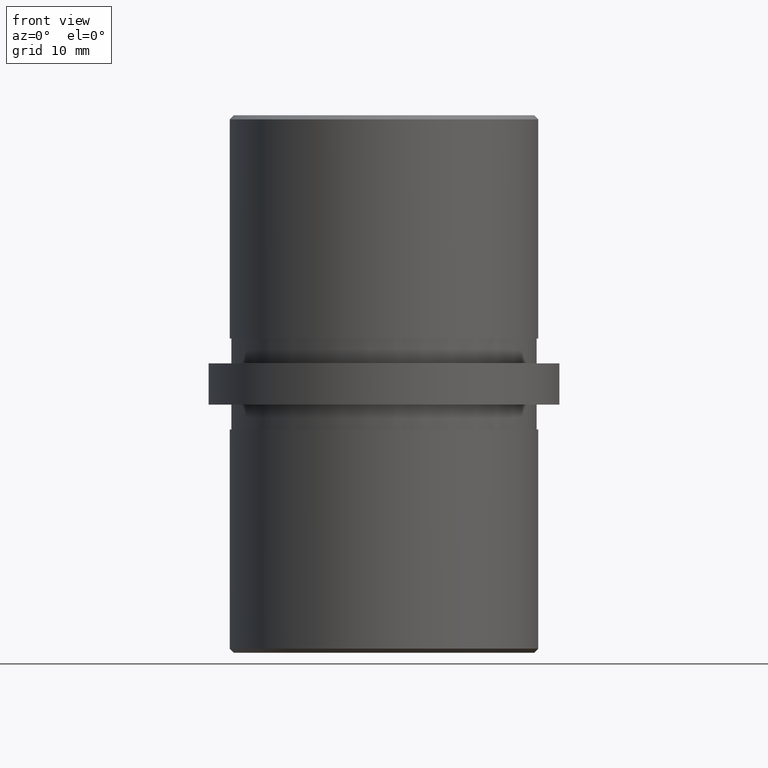
[diagram: clean part render]
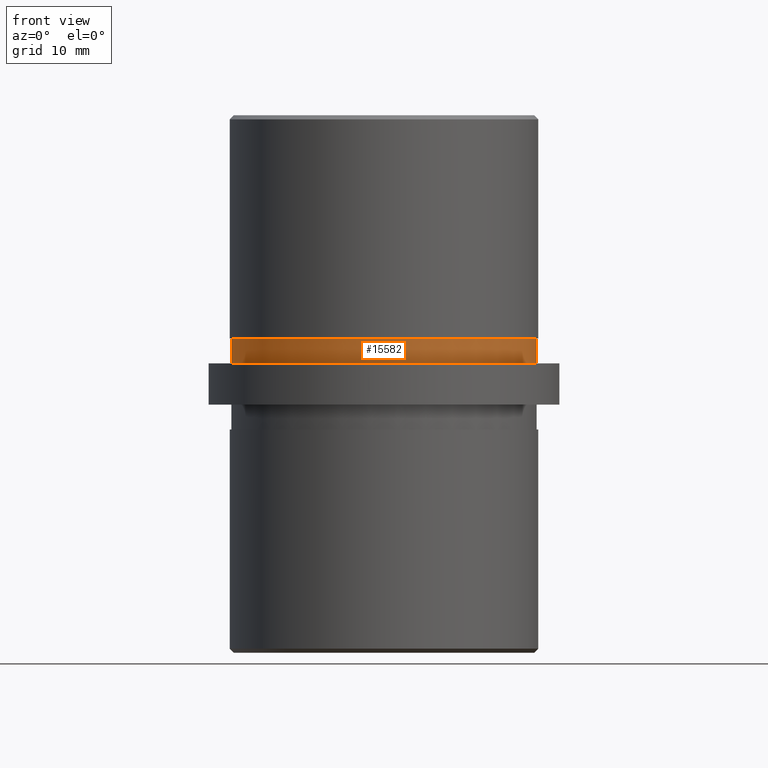
[diagram: same view with one face highlighted and labeled with its STEP entity id]
A machine part, front view. The second image highlights one B-rep face of the part: STEP entity #15582.
In plain terms, the highlighted cylindrical surface (partial cylindrical patch) has radius 18.45 mm, axis along (-0, -0, -1).
Its self-contained STEP definition (entity closure, byte-faithful):
#810 = VECTOR ( 'NONE', #11567, 1000.000000000000000 ) ;
#842 = EDGE_CURVE ( 'NONE', #20562, #14164, #14418, .T. ) ;
#1423 = CIRCLE ( 'NONE', #10140, 18.45000000000000300 ) ;
#1593 = AXIS2_PLACEMENT_3D ( 'NONE', #21100, #4175, #16044 ) ;
#1788 = AXIS2_PLACEMENT_3D ( 'NONE', #9281, #14547, #4463 ) ;
#4175 = DIRECTION ( 'NONE',  ( -0.0000000000000000000, -0.0000000000000000000, -1.000000000000000000 ) ) ;
#4463 = DIRECTION ( 'NONE',  ( 1.000000000000000000, 0.0000000000000000000, 0.0000000000000000000 ) ) ;
#5370 = CIRCLE ( 'NONE', #1788, 18.45000000000000300 ) ;
#7508 = CYLINDRICAL_SURFACE ( 'NONE', #1593, 18.45000000000000300 ) ;
#7784 = FACE_OUTER_BOUND ( 'NONE', #12672, .T. ) ;
#8277 = CARTESIAN_POINT ( 'NONE',  ( 18.45000000000000300, 2.259473344426867100E-015, 5.500000000000000000 ) ) ;
#9281 = CARTESIAN_POINT ( 'NONE',  ( 0.0000000000000000000, 0.0000000000000000000, 2.500000000000000000 ) ) ;
#10140 = AXIS2_PLACEMENT_3D ( 'NONE', #16446, #21906, #18383 ) ;
#10831 = ORIENTED_EDGE ( 'NONE', *, *, #842, .F. ) ;
#11567 = DIRECTION ( 'NONE',  ( -0.0000000000000000000, -0.0000000000000000000, -1.000000000000000000 ) ) ;
#12302 = VERTEX_POINT ( 'NONE', #20015 ) ;
#12672 = EDGE_LOOP ( 'NONE', ( #10831, #15357, #20921, #16193 ) ) ;
#12697 = CARTESIAN_POINT ( 'NONE',  ( 18.45000000000000300, 2.259473344426867100E-015, 5.500000000000000000 ) ) ;
#13881 = VECTOR ( 'NONE', #20002, 1000.000000000000000 ) ;
#14098 = CARTESIAN_POINT ( 'NONE',  ( 18.45000000000000300, 2.259473344426867100E-015, 2.500000000000000000 ) ) ;
#14164 = VERTEX_POINT ( 'NONE', #14098 ) ;
#14418 = LINE ( 'NONE', #8277, #13881 ) ;
#14454 = CARTESIAN_POINT ( 'NONE',  ( -18.45000000000000300, 0.0000000000000000000, 2.500000000000000000 ) ) ;
#14547 = DIRECTION ( 'NONE',  ( 0.0000000000000000000, 0.0000000000000000000, 1.000000000000000000 ) ) ;
#15353 = EDGE_CURVE ( 'NONE', #12302, #18003, #17748, .T. ) ;
#15357 = ORIENTED_EDGE ( 'NONE', *, *, #16754, .F. ) ;
#15582 = ADVANCED_FACE ( 'NONE', ( #7784 ), #7508, .T. ) ;
#16044 = DIRECTION ( 'NONE',  ( -1.000000000000000000, 0.0000000000000000000, 0.0000000000000000000 ) ) ;
#16193 = ORIENTED_EDGE ( 'NONE', *, *, #17870, .T. ) ;
#16446 = CARTESIAN_POINT ( 'NONE',  ( 0.0000000000000000000, 0.0000000000000000000, 5.500000000000000000 ) ) ;
#16754 = EDGE_CURVE ( 'NONE', #12302, #20562, #1423, .T. ) ;
#17748 = LINE ( 'NONE', #21912, #810 ) ;
#17870 = EDGE_CURVE ( 'NONE', #18003, #14164, #5370, .T. ) ;
#18003 = VERTEX_POINT ( 'NONE', #14454 ) ;
#18383 = DIRECTION ( 'NONE',  ( 1.000000000000000000, 0.0000000000000000000, 0.0000000000000000000 ) ) ;
#20002 = DIRECTION ( 'NONE',  ( -0.0000000000000000000, -0.0000000000000000000, -1.000000000000000000 ) ) ;
#20015 = CARTESIAN_POINT ( 'NONE',  ( -18.45000000000000300, 0.0000000000000000000, 5.500000000000000000 ) ) ;
#20562 = VERTEX_POINT ( 'NONE', #12697 ) ;
#20921 = ORIENTED_EDGE ( 'NONE', *, *, #15353, .T. ) ;
#21100 = CARTESIAN_POINT ( 'NONE',  ( 0.0000000000000000000, 0.0000000000000000000, 5.500000000000000000 ) ) ;
#21906 = DIRECTION ( 'NONE',  ( 0.0000000000000000000, 0.0000000000000000000, 1.000000000000000000 ) ) ;
#21912 = CARTESIAN_POINT ( 'NONE',  ( -18.45000000000000300, 0.0000000000000000000, 5.500000000000000000 ) ) ;